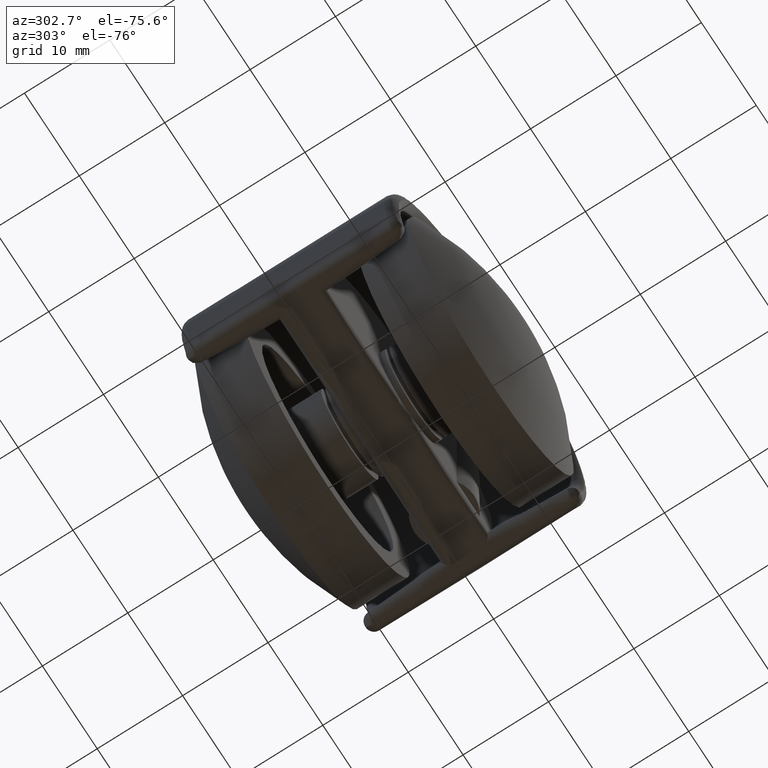
[diagram: clean part render]
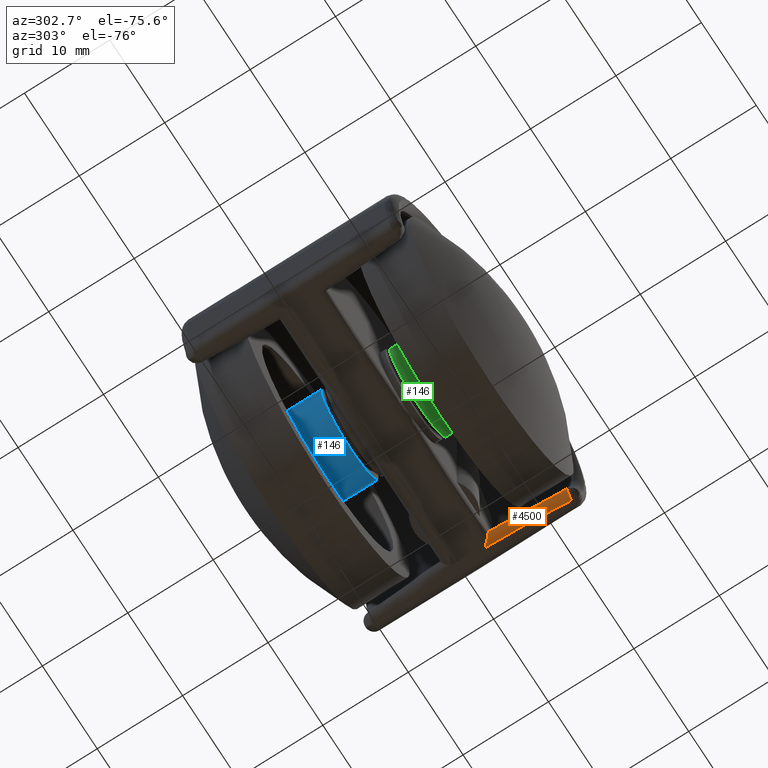
[diagram: same view with three faces highlighted in distinct colors, each labeled with its STEP entity id]
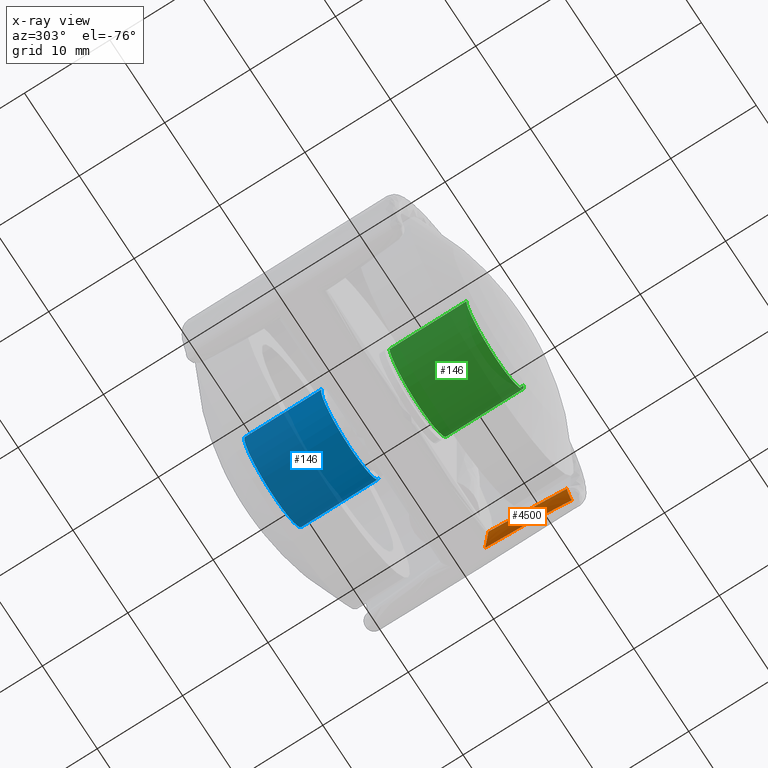
[diagram: x-ray of the same camera — body ghosted, the three highlighted faces saturated]
A machine part, auxiliary view with three faces highlighted in distinct colors.
The next image is the same camera in x-ray (body ghosted, the three faces saturated) — at least one of them is partly hidden behind the body in this view.
Their STEP definitions:

[orange] entity #4500 — the highlighted face is a freeform B-spline surface patch.
#4286=CARTESIAN_POINT('',(15.204656372036450,-11.688145896656501,-4.705506961129660));
#4287=VERTEX_POINT('',#4286);
#4365=CARTESIAN_POINT('',(16.156236190527551,-11.600000000000000,-6.0));
#4366=VERTEX_POINT('',#4365);
#4367=CARTESIAN_POINT('',(15.204656372036460,-11.688145896656531,-4.705506961129663));
#4368=CARTESIAN_POINT('',(15.056648363119047,-11.701856043093926,-5.187861070268458));
#4369=CARTESIAN_POINT('',(15.355149394850320,-11.674205560618811,-5.593930535134229));
#4370=CARTESIAN_POINT('',(15.653650426581585,-11.646555078143704,-6.000000000000001));
#4371=CARTESIAN_POINT('',(16.156236190527551,-11.600000000000000,-6.0));
#4379=(BOUNDED_CURVE()B_SPLINE_CURVE(2,(#4367,#4368,#4369,#4370,#4371),.UNSPECIFIED.,.F.,.U.)B_SPLINE_CURVE_WITH_KNOTS((3,2,3),(0.0,0.500000000000000,1.0),.UNSPECIFIED.)CURVE()GEOMETRIC_REPRESENTATION_ITEM()RATIONAL_B_SPLINE_CURVE((1.0,0.892729112086704,1.0,0.892729112086704,1.0))REPRESENTATION_ITEM(''));
#4380=EDGE_CURVE('',#4287,#4366,#4379,.T.);
#4399=CARTESIAN_POINT('',(15.211561787874924,-11.737363382848230,-4.697922915123721));
#4400=CARTESIAN_POINT('',(15.210044425345657,-11.720884886335343,-4.697894451502715));
#4401=CARTESIAN_POINT('',(15.208527063179599,-11.704406393766948,-4.697865987888517));
#4402=CARTESIAN_POINT('',(14.901723886519799,-8.372536139166241,-4.692110784911953));
#4403=CARTESIAN_POINT('',(14.727037853049167,-5.061391117782303,-4.688596284259090));
#4404=CARTESIAN_POINT('',(14.681392323970078,-1.754472537358716,-4.687689198654760));
#4405=CARTESIAN_POINT('',(15.210387874291669,-11.737471974874671,-4.701749832813558));
#4406=CARTESIAN_POINT('',(15.208870390909736,-11.720993541172897,-4.701721375314246));
#4407=CARTESIAN_POINT('',(15.207352907709790,-11.704515109447348,-4.701692917818343));
#4408=CARTESIAN_POINT('',(14.900521535148917,-8.372616723898561,-4.695938882105095));
#4409=CARTESIAN_POINT('',(14.725817874797780,-5.061440193030155,-4.692424958735255));
#4410=CARTESIAN_POINT('',(14.680167823011489,-1.754489549616217,-4.691518049551880));
#4411=CARTESIAN_POINT('',(14.812147402653720,-11.774310921491102,-6.0));
#4412=CARTESIAN_POINT('',(14.810580827840722,-11.757854544947156,-6.0));
#4413=CARTESIAN_POINT('',(14.809014189735180,-11.741397503534854,-6.0));
#4414=CARTESIAN_POINT('',(14.490934318916217,-8.400068329960952,-6.000000000000001));
#4415=CARTESIAN_POINT('',(14.309168947778518,-5.078200450302814,-6.0));
#4416=CARTESIAN_POINT('',(14.261703525065908,-1.760303364903590,-6.0));
#4417=CARTESIAN_POINT('',(16.164778237040924,-11.648691082593942,-6.000000000000001));
#4418=CARTESIAN_POINT('',(16.163263410153370,-11.632337286764296,-6.0));
#4419=CARTESIAN_POINT('',(16.161748583447210,-11.615983492892957,-6.000000000000003));
#4420=CARTESIAN_POINT('',(15.855454341709523,-8.309286513647843,-5.999999999999999));
#4421=CARTESIAN_POINT('',(15.680939954204652,-5.023157741690353,-6.000000000000002));
#4422=CARTESIAN_POINT('',(15.635344697006724,-1.741219070056935,-6.000000000000001));
#4423=CARTESIAN_POINT('',(16.168759420415636,-11.648321347111480,-6.000000000000002));
#4424=CARTESIAN_POINT('',(16.167244664937940,-11.631967860713251,-5.999999999999999));
#4425=CARTESIAN_POINT('',(16.165729909822286,-11.615614378223659,-6.0));
#4426=CARTESIAN_POINT('',(15.859453854618311,-8.309020425177053,-6.0));
#4427=CARTESIAN_POINT('',(15.684950519860692,-5.022996816582777,-6.000000000000001));
#4428=CARTESIAN_POINT('',(15.639358131790244,-1.741163310536674,-5.999999999999996));
#4436=(BOUNDED_SURFACE()B_SPLINE_SURFACE(3,2,((#4399,#4405,#4411,#4417,#4423),(#4400,#4406,#4412,#4418,#4424),(#4401,#4407,#4413,#4419,#4425),(#4402,#4408,#4414,#4420,#4426),(#4403,#4409,#4415,#4421,#4427),(#4404,#4410,#4416,#4422,#4428)),.UNSPECIFIED.,.F.,.F.,.U.)B_SPLINE_SURFACE_WITH_KNOTS((4,2,4),(3,1,1,3),(0.0,0.049644707763174,10.038160178283180),(0.0,0.010177722351225,2.042486671627097,2.052648849010379),.UNSPECIFIED.)GEOMETRIC_REPRESENTATION_ITEM()RATIONAL_B_SPLINE_SURFACE(((1.004066798925748,1.002033399462874,0.593966529716362,1.002030293745467,1.004060587490934),(1.004066919098704,1.002033459549352,0.593954531522317,1.002030353740172,1.004060707480345),(1.004067039271661,1.002033519635831,0.593942533328272,1.002030413734877,1.004060827469755),(1.004091338244160,1.002045669122080,0.591516498427524,1.002042544664581,1.004085089329162),(1.004106280743642,1.002053140371821,0.590024623606552,1.002050004503091,1.004100009006182),(1.004110082236619,1.002055041118310,0.589645078560428,1.002051902346470,1.004103804692941)))REPRESENTATION_ITEM('')SURFACE());
#4437=CARTESIAN_POINT('',(15.632144428525550,-1.800000000000000,-6.0));
#4438=VERTEX_POINT('',#4437);
#4439=CARTESIAN_POINT('',(14.650248261785540,-2.800000000000000,-5.0));
#4440=VERTEX_POINT('',#4439);
#4441=CARTESIAN_POINT('',(15.632144428525550,-1.800000000000000,-6.0));
#4442=CARTESIAN_POINT('',(15.618307586829530,-1.814037238961437,-5.999999999999999));
#4443=CARTESIAN_POINT('',(15.604289627289990,-1.828260075498918,-5.999700390631459));
#4444=CARTESIAN_POINT('',(15.576477596672090,-1.856483803965014,-5.998503421519194));
#4445=CARTESIAN_POINT('',(15.562598674298529,-1.870570521603777,-5.997606614496215));
#4446=CARTESIAN_POINT('',(15.521042941924600,-1.912755400325928,-5.994023562558435));
#4447=CARTESIAN_POINT('',(15.493447026138449,-1.940778430033290,-5.990446305470829));
#4448=CARTESIAN_POINT('',(15.410986067949199,-2.024543077108866,-5.976109731565198));
#4449=CARTESIAN_POINT('',(15.356421156107221,-2.080007378227902,-5.961769065254226));
#4450=CARTESIAN_POINT('',(15.248329257794619,-2.189951272035270,-5.922681891108809));
#4451=CARTESIAN_POINT('',(15.195747106348980,-2.243469814260344,-5.898282302583730));
#4452=CARTESIAN_POINT('',(15.093726474007379,-2.347368554107526,-5.839025766749430));
#4453=CARTESIAN_POINT('',(15.044280581783950,-2.397756371201970,-5.804193843828868));
#4454=CARTESIAN_POINT('',(14.972919503036371,-2.470516615911392,-5.742574960679354));
#4455=CARTESIAN_POINT('',(14.949609895033831,-2.494290208617342,-5.720436669225573));
#4456=CARTESIAN_POINT('',(14.904956325354810,-2.539844376113057,-5.673571219159959));
#4457=CARTESIAN_POINT('',(14.883495972524351,-2.561743606734310,-5.648751565694026));
#4458=CARTESIAN_POINT('',(14.842463599730211,-2.603624890608697,-5.596086362522415));
#4459=CARTESIAN_POINT('',(14.822890262075630,-2.623608293500563,-5.568242933800206));
#4460=CARTESIAN_POINT('',(14.785878523519919,-2.661403307078875,-5.509131609203701));
#4461=CARTESIAN_POINT('',(14.768372450623071,-2.679284088017892,-5.477685929639369));
#4462=CARTESIAN_POINT('',(14.736661139126561,-2.711679809160500,-5.412509733686318));
#4463=CARTESIAN_POINT('',(14.722350238594579,-2.726302612133338,-5.378646507350412));
#4464=CARTESIAN_POINT('',(14.697118153081020,-2.752088002662098,-5.308120336817619));
#4465=CARTESIAN_POINT('',(14.686125893393781,-2.763323244482653,-5.271134786165330));
#4466=CARTESIAN_POINT('',(14.659544938451310,-2.790494065402372,-5.157938244009196));
#4467=CARTESIAN_POINT('',(14.650248261785540,-2.799999999999999,-5.080215637264710));
#4468=CARTESIAN_POINT('',(14.650248261785540,-2.800000000000000,-5.0));
#4469=B_SPLINE_CURVE_WITH_KNOTS('',3,(#4441,#4442,#4443,#4444,#4445,#4446,#4447,#4448,#4449,#4450,#4451,#4452,#4453,#4454,#4455,#4456,#4457,#4458,#4459,#4460,#4461,#4462,#4463,#4464,#4465,#4466,#4467,#4468),.UNSPECIFIED.,.F.,.U.,(4,2,2,2,2,2,2,2,2,2,2,2,2,4),(0.0,0.031250000000000,0.062500000000000,0.124999999999999,0.250000000000001,0.375000000000002,0.500000000000003,0.562500000000003,0.625000000000002,0.687500000000002,0.750000000000002,0.812500000000001,0.875000000000001,1.0),.UNSPECIFIED.);
#4470=EDGE_CURVE('',#4438,#4440,#4469,.T.);
#4471=ORIENTED_EDGE('',*,*,#4470,.F.);
#4472=CARTESIAN_POINT('',(16.156236190527551,-11.600000000000000,-6.0));
#4473=CARTESIAN_POINT('',(15.854271681005169,-8.340139427230428,-6.0));
#4474=CARTESIAN_POINT('',(15.679157659716580,-5.073495048757872,-6.0));
#4475=CARTESIAN_POINT('',(15.632144428525550,-1.800000000000000,-6.0));
#4476=QUASI_UNIFORM_CURVE('',3,(#4472,#4473,#4474,#4475),.UNSPECIFIED.,.F.,.U.);
#4477=EDGE_CURVE('',#4366,#4438,#4476,.T.);
#4478=ORIENTED_EDGE('',*,*,#4477,.F.);
#4479=ORIENTED_EDGE('',*,*,#4380,.F.);
#4480=CARTESIAN_POINT('',(14.697672802312301,-2.800000000000000,-4.695734356256221));
#4481=VERTEX_POINT('',#4480);
#4482=CARTESIAN_POINT('',(14.697672802312301,-2.800000000000000,-4.695734356256221));
#4483=CARTESIAN_POINT('',(14.730369705171350,-4.283996185920033,-4.696382348199922));
#4484=CARTESIAN_POINT('',(14.789064182861861,-5.767387859146925,-4.697544156381363));
#4485=CARTESIAN_POINT('',(14.958144200503330,-8.730281047438066,-4.700830633643713));
#4486=CARTESIAN_POINT('',(15.068528438401820,-10.210049330964180,-4.702954939013378));
#4487=CARTESIAN_POINT('',(15.204656372036450,-11.688145896656501,-4.705506961129660));
#4488=B_SPLINE_CURVE_WITH_KNOTS('',3,(#4482,#4483,#4484,#4485,#4486,#4487),.UNSPECIFIED.,.F.,.U.,(4,2,4),(0.0,0.500000000000000,1.0),.UNSPECIFIED.);
#4489=EDGE_CURVE('',#4481,#4287,#4488,.T.);
#4490=ORIENTED_EDGE('',*,*,#4489,.F.);
#4491=CARTESIAN_POINT('',(14.650248261785540,-2.800000000000000,-5.0));
#4492=CARTESIAN_POINT('',(14.650248261785540,-2.800000000000000,-4.896114173299632));
#4493=CARTESIAN_POINT('',(14.666056774451761,-2.800000000000000,-4.794692326814576));
#4494=CARTESIAN_POINT('',(14.697672802312301,-2.800000000000000,-4.695734356256221));
#4495=QUASI_UNIFORM_CURVE('',3,(#4491,#4492,#4493,#4494),.UNSPECIFIED.,.F.,.U.);
#4496=EDGE_CURVE('',#4440,#4481,#4495,.T.);
#4497=ORIENTED_EDGE('',*,*,#4496,.F.);
#4498=EDGE_LOOP('',(#4471,#4478,#4479,#4490,#4497));
#4499=FACE_OUTER_BOUND('',#4498,.T.);
#4500=ADVANCED_FACE('',(#4499),#4436,.T.);

[blue] entity #146 — the highlighted face is a freeform B-spline surface patch.
#44=CARTESIAN_POINT('',(5.213300013409247,-13.224693093358580,0.619679731947982));
#45=CARTESIAN_POINT('',(5.231034981105179,-13.224693093358583,0.470477325349383));
#46=CARTESIAN_POINT('',(5.240207691714800,-13.224693093358580,0.320504832557999));
#47=CARTESIAN_POINT('',(5.560712524272800,-13.224693093358583,-4.919702859156800));
#48=CARTESIAN_POINT('',(0.320504832557999,-13.224693093358580,-5.240207691714800));
#49=CARTESIAN_POINT('',(-4.919702859156800,-13.224693093358583,-5.560712524272800));
#50=CARTESIAN_POINT('',(-5.240207691714800,-13.224693093358580,-0.320504832557999));
#51=CARTESIAN_POINT('',(5.213300013409247,-3.769382672666038,0.619679731947982));
#52=CARTESIAN_POINT('',(5.231034981105179,-3.769382672666036,0.470477325349383));
#53=CARTESIAN_POINT('',(5.240207691714800,-3.769382672666037,0.320504832557999));
#54=CARTESIAN_POINT('',(5.560712524272800,-3.769382672666036,-4.919702859156800));
#55=CARTESIAN_POINT('',(0.320504832557999,-3.769382672666037,-5.240207691714800));
#56=CARTESIAN_POINT('',(-4.919702859156800,-3.769382672666036,-5.560712524272800));
#57=CARTESIAN_POINT('',(-5.240207691714800,-3.769382672666037,-0.320504832557999));
#65=(BOUNDED_SURFACE()B_SPLINE_SURFACE(2,1,((#44,#51),(#45,#52),(#46,#53),(#47,#54),(#48,#55),(#49,#56),(#50,#57)),.UNSPECIFIED.,.F.,.F.,.U.)B_SPLINE_SURFACE_WITH_KNOTS((3,2,2,3),(2,2),(0.0,0.347939392393400,9.046424202228392,17.744909012063388),(0.0,9.455310420692547),.UNSPECIFIED.)GEOMETRIC_REPRESENTATION_ITEM()RATIONAL_B_SPLINE_SURFACE(((0.977505800795127,0.977505800795127),(0.988284271247462,0.988284271247462),(1.0,1.0),(0.707106781186548,0.707106781186548),(1.0,1.0),(0.707106781186548,0.707106781186548),(1.0,1.0)))REPRESENTATION_ITEM('')SURFACE());
#66=CARTESIAN_POINT('',(5.213300813468459,-12.999700578886360,0.619673001060361));
#67=VERTEX_POINT('',#66);
#68=CARTESIAN_POINT('',(0.0,-12.999700578886420,-5.250000000000000));
#69=VERTEX_POINT('',#68);
#70=CARTESIAN_POINT('',(5.213300813468459,-12.999700578886356,0.619673001060361));
#71=CARTESIAN_POINT('',(5.250000000000000,-12.999700578886422,0.310923227150327));
#72=CARTESIAN_POINT('',(5.250000000000000,-12.999700578886420,0.0));
#73=CARTESIAN_POINT('',(5.249999999999999,-12.999700578886417,-5.249999999999999));
#74=CARTESIAN_POINT('',(0.0,-12.999700578886420,-5.250000000000000));
#82=(BOUNDED_CURVE()B_SPLINE_CURVE(2,(#70,#71,#72,#73,#74),.UNSPECIFIED.,.F.,.U.)B_SPLINE_CURVE_WITH_KNOTS((3,2,3),(0.229562691715625,0.250000000000000,0.500000000000000),.UNSPECIFIED.)CURVE()GEOMETRIC_REPRESENTATION_ITEM()RATIONAL_B_SPLINE_CURVE((0.956027181869225,0.976056203970827,1.0,0.707106781186547,1.0))REPRESENTATION_ITEM(''));
#83=EDGE_CURVE('',#67,#69,#82,.T.);
#84=ORIENTED_EDGE('',*,*,#83,.T.);
#85=CARTESIAN_POINT('',(-5.240207691712302,-12.999700578886420,-0.320504832598847));
#86=VERTEX_POINT('',#85);
#87=CARTESIAN_POINT('',(0.0,-12.999700578886420,-5.250000000000000));
#88=CARTESIAN_POINT('',(-4.938706851177756,-12.999700578886419,-5.250000000000002));
#89=CARTESIAN_POINT('',(-5.240207691712302,-12.999700578886419,-0.320504832598847));
#97=(BOUNDED_CURVE()B_SPLINE_CURVE(2,(#87,#88,#89),.UNSPECIFIED.,.F.,.U.)B_SPLINE_CURVE_WITH_KNOTS((3,3),(0.500000000000000,0.739332962239278),.UNSPECIFIED.)CURVE()GEOMETRIC_REPRESENTATION_ITEM()RATIONAL_B_SPLINE_CURVE((1.0,0.719603993286317,0.976072041667436))REPRESENTATION_ITEM(''));
#98=EDGE_CURVE('',#69,#86,#97,.T.);
#99=ORIENTED_EDGE('',*,*,#98,.T.);
#100=CARTESIAN_POINT('',(-5.240207691712302,-4.0,-0.320504832598845));
#101=VERTEX_POINT('',#100);
#102=CARTESIAN_POINT('',(-5.240207691712302,-12.999700578886420,-0.320504832598847));
#103=CARTESIAN_POINT('',(-5.240207691712302,-4.0,-0.320504832598845));
#104=QUASI_UNIFORM_CURVE('',1,(#102,#103),.UNSPECIFIED.,.F.,.U.);
#105=EDGE_CURVE('',#86,#101,#104,.T.);
#106=ORIENTED_EDGE('',*,*,#105,.T.);
#107=CARTESIAN_POINT('',(0.0,-4.0,-5.250000000000000));
#108=VERTEX_POINT('',#107);
#109=CARTESIAN_POINT('',(0.0,-4.0,-5.250000000000000));
#110=CARTESIAN_POINT('',(-4.938706851177756,-4.0,-5.250000000000002));
#111=CARTESIAN_POINT('',(-5.240207691712302,-4.0,-0.320504832598845));
#119=(BOUNDED_CURVE()B_SPLINE_CURVE(2,(#109,#110,#111),.UNSPECIFIED.,.F.,.U.)B_SPLINE_CURVE_WITH_KNOTS((3,3),(0.500000000000000,0.739332962239278),.UNSPECIFIED.)CURVE()GEOMETRIC_REPRESENTATION_ITEM()RATIONAL_B_SPLINE_CURVE((1.0,0.719603993286317,0.976072041667436))REPRESENTATION_ITEM(''));
#120=EDGE_CURVE('',#108,#101,#119,.T.);
#121=ORIENTED_EDGE('',*,*,#120,.F.);
#122=CARTESIAN_POINT('',(5.213300803844392,-4.000000000000001,0.619673082028389));
#123=VERTEX_POINT('',#122);
#124=CARTESIAN_POINT('',(5.213300803844392,-4.000000000000002,0.619673082028389));
#125=CARTESIAN_POINT('',(5.250000000000000,-4.0,0.310923268062317));
#126=CARTESIAN_POINT('',(5.250000000000000,-4.0,0.0));
#127=CARTESIAN_POINT('',(5.249999999999999,-4.0,-5.249999999999999));
#128=CARTESIAN_POINT('',(0.0,-4.0,-5.250000000000000));
#136=(BOUNDED_CURVE()B_SPLINE_CURVE(2,(#124,#125,#126,#127,#128),.UNSPECIFIED.,.F.,.U.)B_SPLINE_CURVE_WITH_KNOTS((3,2,3),(0.229562689090827,0.250000000000000,0.500000000000000),.UNSPECIFIED.)CURVE()GEOMETRIC_REPRESENTATION_ITEM()RATIONAL_B_SPLINE_CURVE((0.956027176724501,0.976056200895684,1.0,0.707106781186547,1.0))REPRESENTATION_ITEM(''));
#137=EDGE_CURVE('',#123,#108,#136,.T.);
#138=ORIENTED_EDGE('',*,*,#137,.F.);
#139=CARTESIAN_POINT('',(5.213300813468459,-12.999700578886360,0.619673001060361));
#140=CARTESIAN_POINT('',(5.213300803844392,-4.000000000000001,0.619673082028389));
#141=QUASI_UNIFORM_CURVE('',1,(#139,#140),.UNSPECIFIED.,.F.,.U.);
#142=EDGE_CURVE('',#67,#123,#141,.T.);
#143=ORIENTED_EDGE('',*,*,#142,.F.);
#144=EDGE_LOOP('',(#84,#99,#106,#121,#138,#143));
#145=FACE_OUTER_BOUND('',#144,.T.);
#146=ADVANCED_FACE('',(#145),#65,.T.);

[green] entity #146 — the highlighted face is a freeform B-spline surface patch.
#44=CARTESIAN_POINT('',(5.213300013409247,-13.224693093358580,0.619679731947982));
#45=CARTESIAN_POINT('',(5.231034981105179,-13.224693093358583,0.470477325349383));
#46=CARTESIAN_POINT('',(5.240207691714800,-13.224693093358580,0.320504832557999));
#47=CARTESIAN_POINT('',(5.560712524272800,-13.224693093358583,-4.919702859156800));
#48=CARTESIAN_POINT('',(0.320504832557999,-13.224693093358580,-5.240207691714800));
#49=CARTESIAN_POINT('',(-4.919702859156800,-13.224693093358583,-5.560712524272800));
#50=CARTESIAN_POINT('',(-5.240207691714800,-13.224693093358580,-0.320504832557999));
#51=CARTESIAN_POINT('',(5.213300013409247,-3.769382672666038,0.619679731947982));
#52=CARTESIAN_POINT('',(5.231034981105179,-3.769382672666036,0.470477325349383));
#53=CARTESIAN_POINT('',(5.240207691714800,-3.769382672666037,0.320504832557999));
#54=CARTESIAN_POINT('',(5.560712524272800,-3.769382672666036,-4.919702859156800));
#55=CARTESIAN_POINT('',(0.320504832557999,-3.769382672666037,-5.240207691714800));
#56=CARTESIAN_POINT('',(-4.919702859156800,-3.769382672666036,-5.560712524272800));
#57=CARTESIAN_POINT('',(-5.240207691714800,-3.769382672666037,-0.320504832557999));
#65=(BOUNDED_SURFACE()B_SPLINE_SURFACE(2,1,((#44,#51),(#45,#52),(#46,#53),(#47,#54),(#48,#55),(#49,#56),(#50,#57)),.UNSPECIFIED.,.F.,.F.,.U.)B_SPLINE_SURFACE_WITH_KNOTS((3,2,2,3),(2,2),(0.0,0.347939392393400,9.046424202228392,17.744909012063388),(0.0,9.455310420692547),.UNSPECIFIED.)GEOMETRIC_REPRESENTATION_ITEM()RATIONAL_B_SPLINE_SURFACE(((0.977505800795127,0.977505800795127),(0.988284271247462,0.988284271247462),(1.0,1.0),(0.707106781186548,0.707106781186548),(1.0,1.0),(0.707106781186548,0.707106781186548),(1.0,1.0)))REPRESENTATION_ITEM('')SURFACE());
#66=CARTESIAN_POINT('',(5.213300813468459,-12.999700578886360,0.619673001060361));
#67=VERTEX_POINT('',#66);
#68=CARTESIAN_POINT('',(0.0,-12.999700578886420,-5.250000000000000));
#69=VERTEX_POINT('',#68);
#70=CARTESIAN_POINT('',(5.213300813468459,-12.999700578886356,0.619673001060361));
#71=CARTESIAN_POINT('',(5.250000000000000,-12.999700578886422,0.310923227150327));
#72=CARTESIAN_POINT('',(5.250000000000000,-12.999700578886420,0.0));
#73=CARTESIAN_POINT('',(5.249999999999999,-12.999700578886417,-5.249999999999999));
#74=CARTESIAN_POINT('',(0.0,-12.999700578886420,-5.250000000000000));
#82=(BOUNDED_CURVE()B_SPLINE_CURVE(2,(#70,#71,#72,#73,#74),.UNSPECIFIED.,.F.,.U.)B_SPLINE_CURVE_WITH_KNOTS((3,2,3),(0.229562691715625,0.250000000000000,0.500000000000000),.UNSPECIFIED.)CURVE()GEOMETRIC_REPRESENTATION_ITEM()RATIONAL_B_SPLINE_CURVE((0.956027181869225,0.976056203970827,1.0,0.707106781186547,1.0))REPRESENTATION_ITEM(''));
#83=EDGE_CURVE('',#67,#69,#82,.T.);
#84=ORIENTED_EDGE('',*,*,#83,.T.);
#85=CARTESIAN_POINT('',(-5.240207691712302,-12.999700578886420,-0.320504832598847));
#86=VERTEX_POINT('',#85);
#87=CARTESIAN_POINT('',(0.0,-12.999700578886420,-5.250000000000000));
#88=CARTESIAN_POINT('',(-4.938706851177756,-12.999700578886419,-5.250000000000002));
#89=CARTESIAN_POINT('',(-5.240207691712302,-12.999700578886419,-0.320504832598847));
#97=(BOUNDED_CURVE()B_SPLINE_CURVE(2,(#87,#88,#89),.UNSPECIFIED.,.F.,.U.)B_SPLINE_CURVE_WITH_KNOTS((3,3),(0.500000000000000,0.739332962239278),.UNSPECIFIED.)CURVE()GEOMETRIC_REPRESENTATION_ITEM()RATIONAL_B_SPLINE_CURVE((1.0,0.719603993286317,0.976072041667436))REPRESENTATION_ITEM(''));
#98=EDGE_CURVE('',#69,#86,#97,.T.);
#99=ORIENTED_EDGE('',*,*,#98,.T.);
#100=CARTESIAN_POINT('',(-5.240207691712302,-4.0,-0.320504832598845));
#101=VERTEX_POINT('',#100);
#102=CARTESIAN_POINT('',(-5.240207691712302,-12.999700578886420,-0.320504832598847));
#103=CARTESIAN_POINT('',(-5.240207691712302,-4.0,-0.320504832598845));
#104=QUASI_UNIFORM_CURVE('',1,(#102,#103),.UNSPECIFIED.,.F.,.U.);
#105=EDGE_CURVE('',#86,#101,#104,.T.);
#106=ORIENTED_EDGE('',*,*,#105,.T.);
#107=CARTESIAN_POINT('',(0.0,-4.0,-5.250000000000000));
#108=VERTEX_POINT('',#107);
#109=CARTESIAN_POINT('',(0.0,-4.0,-5.250000000000000));
#110=CARTESIAN_POINT('',(-4.938706851177756,-4.0,-5.250000000000002));
#111=CARTESIAN_POINT('',(-5.240207691712302,-4.0,-0.320504832598845));
#119=(BOUNDED_CURVE()B_SPLINE_CURVE(2,(#109,#110,#111),.UNSPECIFIED.,.F.,.U.)B_SPLINE_CURVE_WITH_KNOTS((3,3),(0.500000000000000,0.739332962239278),.UNSPECIFIED.)CURVE()GEOMETRIC_REPRESENTATION_ITEM()RATIONAL_B_SPLINE_CURVE((1.0,0.719603993286317,0.976072041667436))REPRESENTATION_ITEM(''));
#120=EDGE_CURVE('',#108,#101,#119,.T.);
#121=ORIENTED_EDGE('',*,*,#120,.F.);
#122=CARTESIAN_POINT('',(5.213300803844392,-4.000000000000001,0.619673082028389));
#123=VERTEX_POINT('',#122);
#124=CARTESIAN_POINT('',(5.213300803844392,-4.000000000000002,0.619673082028389));
#125=CARTESIAN_POINT('',(5.250000000000000,-4.0,0.310923268062317));
#126=CARTESIAN_POINT('',(5.250000000000000,-4.0,0.0));
#127=CARTESIAN_POINT('',(5.249999999999999,-4.0,-5.249999999999999));
#128=CARTESIAN_POINT('',(0.0,-4.0,-5.250000000000000));
#136=(BOUNDED_CURVE()B_SPLINE_CURVE(2,(#124,#125,#126,#127,#128),.UNSPECIFIED.,.F.,.U.)B_SPLINE_CURVE_WITH_KNOTS((3,2,3),(0.229562689090827,0.250000000000000,0.500000000000000),.UNSPECIFIED.)CURVE()GEOMETRIC_REPRESENTATION_ITEM()RATIONAL_B_SPLINE_CURVE((0.956027176724501,0.976056200895684,1.0,0.707106781186547,1.0))REPRESENTATION_ITEM(''));
#137=EDGE_CURVE('',#123,#108,#136,.T.);
#138=ORIENTED_EDGE('',*,*,#137,.F.);
#139=CARTESIAN_POINT('',(5.213300813468459,-12.999700578886360,0.619673001060361));
#140=CARTESIAN_POINT('',(5.213300803844392,-4.000000000000001,0.619673082028389));
#141=QUASI_UNIFORM_CURVE('',1,(#139,#140),.UNSPECIFIED.,.F.,.U.);
#142=EDGE_CURVE('',#67,#123,#141,.T.);
#143=ORIENTED_EDGE('',*,*,#142,.F.);
#144=EDGE_LOOP('',(#84,#99,#106,#121,#138,#143));
#145=FACE_OUTER_BOUND('',#144,.T.);
#146=ADVANCED_FACE('',(#145),#65,.T.);